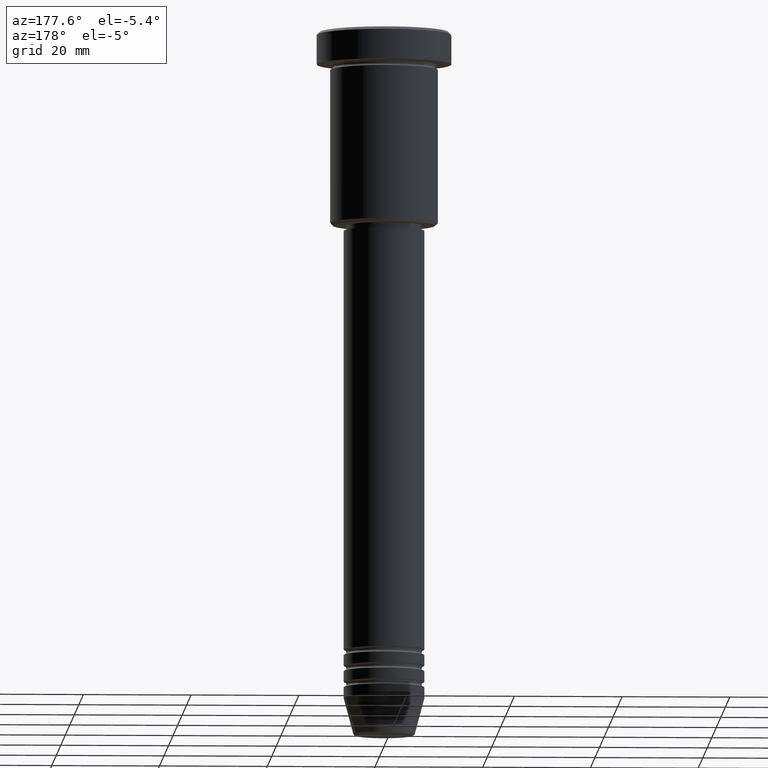
[diagram: clean part render]
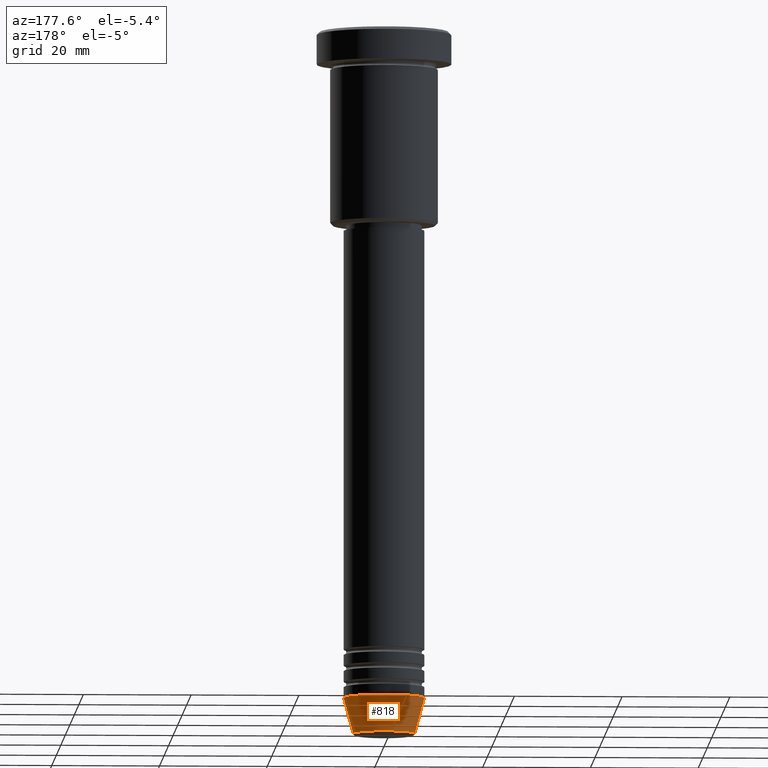
[diagram: same view with one face highlighted and labeled with its STEP entity id]
A machine part, auxiliary view. The second image highlights one B-rep face of the part: STEP entity #818.
In plain terms, the highlighted conical surface has half-angle 15 deg.
Its self-contained STEP definition (entity closure, byte-faithful):
#48 = EDGE_CURVE ( 'NONE', #1112, #1025, #692, .T. ) ;
#58 = AXIS2_PLACEMENT_3D ( 'NONE', #847, #111, #98 ) ;
#98 = DIRECTION ( 'NONE',  ( 1.000000000000000000, 0.000000000000000000, 0.000000000000000000 ) ) ;
#111 = DIRECTION ( 'NONE',  ( -0.000000000000000000, -0.000000000000000000, 1.000000000000000000 ) ) ;
#123 = ORIENTED_EDGE ( 'NONE', *, *, #571, .T. ) ;
#178 = VERTEX_POINT ( 'NONE', #248 ) ;
#179 = DIRECTION ( 'NONE',  ( -0.2588190451025213501, 3.169619151431772337E-17, 0.9659258262890680902 ) ) ;
#209 = ORIENTED_EDGE ( 'NONE', *, *, #841, .T. ) ;
#248 = CARTESIAN_POINT ( 'NONE',  ( -7.500000000000000000, 9.184850993605147944E-16, -124.0000000000000000 ) ) ;
#252 = DIRECTION ( 'NONE',  ( 0.2588190451025213501, 0.000000000000000000, 0.9659258262890680902 ) ) ;
#414 = CARTESIAN_POINT ( 'NONE',  ( 5.723655072137191269, 0.000000000000000000, -130.6294095225512422 ) ) ;
#446 = CARTESIAN_POINT ( 'NONE',  ( -7.500000000000000000, 9.184850993605147944E-16, -124.0000000000000000 ) ) ;
#468 = AXIS2_PLACEMENT_3D ( 'NONE', #1013, #744, #1107 ) ;
#474 = FACE_OUTER_BOUND ( 'NONE', #955, .T. ) ;
#482 = VECTOR ( 'NONE', #252, 1000.000000000000000 ) ;
#554 = CARTESIAN_POINT ( 'NONE',  ( 7.500000000000000000, 0.000000000000000000, -124.0000000000000000 ) ) ;
#571 = EDGE_CURVE ( 'NONE', #797, #178, #1071, .T. ) ;
#630 = CIRCLE ( 'NONE', #58, 5.723655072137191269 ) ;
#692 = LINE ( 'NONE', #711, #482 ) ;
#698 = EDGE_CURVE ( 'NONE', #1025, #178, #929, .T. ) ;
#711 = CARTESIAN_POINT ( 'NONE',  ( 7.500000000000000000, 0.000000000000000000, -124.0000000000000000 ) ) ;
#723 = VECTOR ( 'NONE', #179, 1000.000000000000000 ) ;
#737 = DIRECTION ( 'NONE',  ( -0.000000000000000000, -0.000000000000000000, 1.000000000000000000 ) ) ;
#744 = DIRECTION ( 'NONE',  ( -0.000000000000000000, -0.000000000000000000, 1.000000000000000000 ) ) ;
#777 = ORIENTED_EDGE ( 'NONE', *, *, #698, .F. ) ;
#797 = VERTEX_POINT ( 'NONE', #838 ) ;
#818 = ADVANCED_FACE ( 'NONE', ( #474 ), #990, .T. ) ;
#838 = CARTESIAN_POINT ( 'NONE',  ( -5.723655072137191269, 8.097153428560735915E-16, -130.6294095225512422 ) ) ;
#841 = EDGE_CURVE ( 'NONE', #1112, #797, #630, .T. ) ;
#847 = CARTESIAN_POINT ( 'NONE',  ( 0.000000000000000000, 0.000000000000000000, -130.6294095225512422 ) ) ;
#868 = ORIENTED_EDGE ( 'NONE', *, *, #48, .F. ) ;
#921 = DIRECTION ( 'NONE',  ( 1.000000000000000000, 0.000000000000000000, 0.000000000000000000 ) ) ;
#929 = CIRCLE ( 'NONE', #1123, 7.500000000000000000 ) ;
#955 = EDGE_LOOP ( 'NONE', ( #209, #123, #777, #868 ) ) ;
#990 = CONICAL_SURFACE ( 'NONE', #468, 7.500000000000000000, 0.2617993877991500740 ) ;
#1013 = CARTESIAN_POINT ( 'NONE',  ( 0.000000000000000000, 0.000000000000000000, -124.0000000000000000 ) ) ;
#1025 = VERTEX_POINT ( 'NONE', #554 ) ;
#1071 = LINE ( 'NONE', #446, #723 ) ;
#1096 = CARTESIAN_POINT ( 'NONE',  ( 0.000000000000000000, 0.000000000000000000, -124.0000000000000000 ) ) ;
#1107 = DIRECTION ( 'NONE',  ( 1.000000000000000000, 0.000000000000000000, 0.000000000000000000 ) ) ;
#1112 = VERTEX_POINT ( 'NONE', #414 ) ;
#1123 = AXIS2_PLACEMENT_3D ( 'NONE', #1096, #737, #921 ) ;